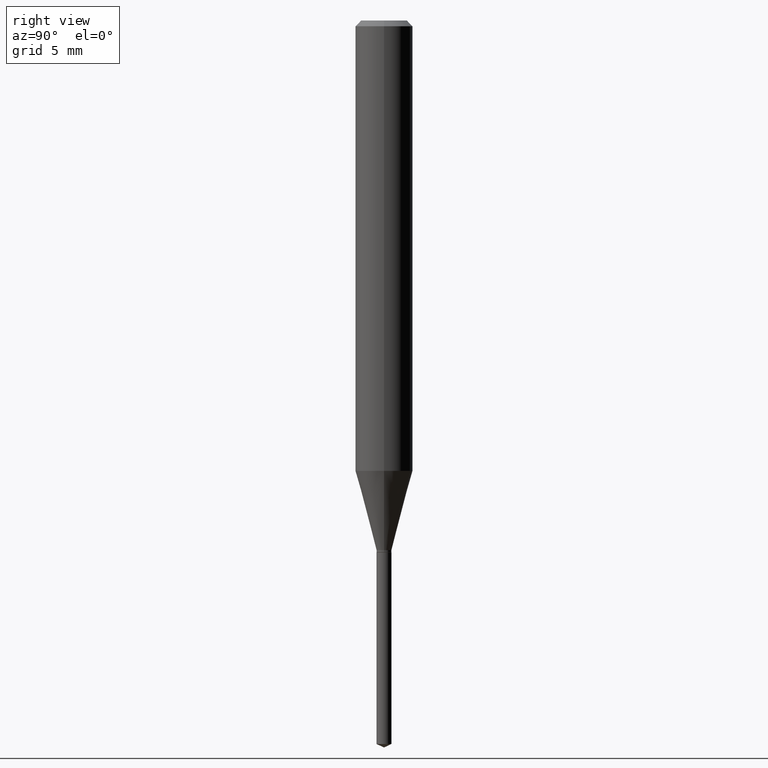
[diagram: clean part render]
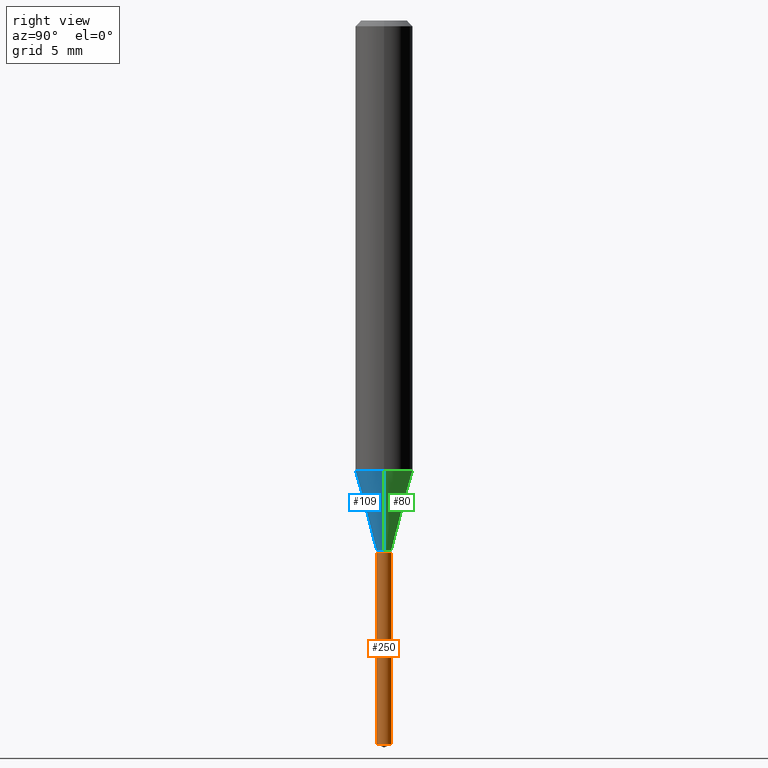
[diagram: same view with three faces highlighted in distinct colors, each labeled with its STEP entity id]
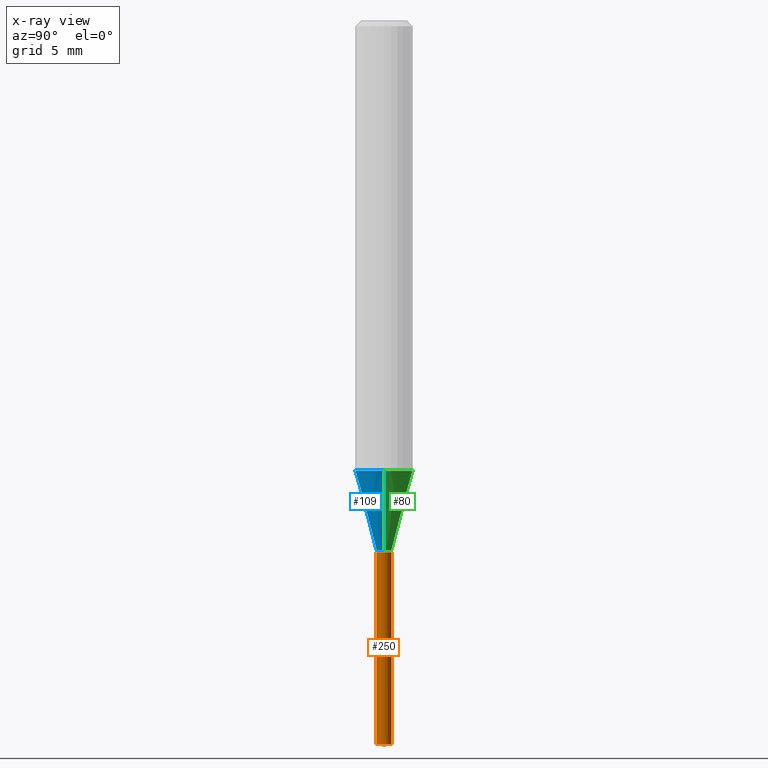
[diagram: x-ray of the same camera — body ghosted, the three highlighted faces saturated]
A machine part, right view with three faces highlighted in distinct colors.
The next image is the same camera in x-ray (body ghosted, the three faces saturated) — at least one of them is partly hidden behind the body in this view.
Their STEP definitions:

[orange] entity #250 — the highlighted cylindrical surface (edge-blend (fillet) strip) has radius 0.3899 mm, axis along (-0, 0, 1).
#15 = ORIENTED_EDGE ( 'NONE', *, *, #364, .F. ) ;
#18 = VECTOR ( 'NONE', #258, 39.37007874015748143 ) ;
#40 = CIRCLE ( 'NONE', #106, 0.01535000000000000080 ) ;
#50 = CARTESIAN_POINT ( 'NONE',  ( -1.071884771024477540E-16, -0.01535000000000519803, -1.488942177447320825 ) ) ;
#60 = DIRECTION ( 'NONE',  ( -2.445470214571802116E-29, 3.491479321953280158E-15, 1.000000000000000000 ) ) ;
#76 = CARTESIAN_POINT ( 'NONE',  ( 1.090683099392117581E-16, 0.01534999999999479663, -1.488942177447320825 ) ) ;
#82 = CARTESIAN_POINT ( 'NONE',  ( -1.071884771024574298E-16, -0.01535000000000382239, -1.094499999999999806 ) ) ;
#94 = DIRECTION ( 'NONE',  ( -2.445470214571802116E-29, 3.491479321953280158E-15, 1.000000000000000000 ) ) ;
#106 = AXIS2_PLACEMENT_3D ( 'NONE', #385, #60, #202 ) ;
#107 = VERTEX_POINT ( 'NONE', #76 ) ;
#129 = DIRECTION ( 'NONE',  ( -6.982962677686265922E-15, -1.000000000000000000, 0.000000000000000000 ) ) ;
#178 = CIRCLE ( 'NONE', #234, 0.01535000000000000080 ) ;
#190 = VERTEX_POINT ( 'NONE', #199 ) ;
#199 = CARTESIAN_POINT ( 'NONE',  ( -1.071884771024574298E-16, -0.01535000000000382239, -1.094499999999999806 ) ) ;
#202 = DIRECTION ( 'NONE',  ( -6.982962677686265922E-15, -1.000000000000000000, 0.000000000000000000 ) ) ;
#209 = CARTESIAN_POINT ( 'NONE',  ( 2.676565608369631794E-29, -3.821426325363822773E-15, -1.094499999999999806 ) ) ;
#223 = EDGE_CURVE ( 'NONE', #256, #107, #40, .T. ) ;
#230 = ORIENTED_EDGE ( 'NONE', *, *, #455, .F. ) ;
#234 = AXIS2_PLACEMENT_3D ( 'NONE', #303, #247, #488 ) ;
#247 = DIRECTION ( 'NONE',  ( -2.445470214571802116E-29, 3.491479321953280158E-15, 1.000000000000000000 ) ) ;
#250 = ADVANCED_FACE ( 'NONE', ( #469 ), #440, .T. ) ;
#256 = VERTEX_POINT ( 'NONE', #50 ) ;
#258 = DIRECTION ( 'NONE',  ( -2.445470214571802396E-29, 3.491479321953280158E-15, 1.000000000000000000 ) ) ;
#259 = VERTEX_POINT ( 'NONE', #316 ) ;
#275 = EDGE_LOOP ( 'NONE', ( #448, #395, #15, #230 ) ) ;
#298 = VECTOR ( 'NONE', #315, 39.37007874015748143 ) ;
#300 = CARTESIAN_POINT ( 'NONE',  ( 1.090683099392021315E-16, 0.01534999999999617747, -1.094499999999999806 ) ) ;
#303 = CARTESIAN_POINT ( 'NONE',  ( 2.676565608369631794E-29, -3.821426325363822773E-15, -1.094499999999999806 ) ) ;
#315 = DIRECTION ( 'NONE',  ( -2.445470214571802396E-29, 3.491479321953280158E-15, 1.000000000000000000 ) ) ;
#316 = CARTESIAN_POINT ( 'NONE',  ( 1.090683099392118567E-16, 0.01534999999999617920, -1.094499999999999806 ) ) ;
#318 = LINE ( 'NONE', #82, #298 ) ;
#364 = EDGE_CURVE ( 'NONE', #190, #259, #178, .T. ) ;
#373 = EDGE_CURVE ( 'NONE', #107, #259, #484, .T. ) ;
#385 = CARTESIAN_POINT ( 'NONE',  ( 3.641162204687900496E-29, -5.198613031627369292E-15, -1.488942177447320825 ) ) ;
#395 = ORIENTED_EDGE ( 'NONE', *, *, #373, .T. ) ;
#440 = CYLINDRICAL_SURFACE ( 'NONE', #468, 0.01535000000000000080 ) ;
#448 = ORIENTED_EDGE ( 'NONE', *, *, #223, .T. ) ;
#455 = EDGE_CURVE ( 'NONE', #256, #190, #318, .T. ) ;
#468 = AXIS2_PLACEMENT_3D ( 'NONE', #209, #94, #129 ) ;
#469 = FACE_OUTER_BOUND ( 'NONE', #275, .T. ) ;
#484 = LINE ( 'NONE', #300, #18 ) ;
#488 = DIRECTION ( 'NONE',  ( -6.982962677686265922E-15, -1.000000000000000000, 0.000000000000000000 ) ) ;

[blue] entity #109 — the highlighted conical surface has half-angle 15 deg.
#6 = DIRECTION ( 'NONE',  ( 1.000000000000000000, -6.982962677686265922E-15, 0.000000000000000000 ) ) ;
#8 = LINE ( 'NONE', #423, #436 ) ;
#26 = VECTOR ( 'NONE', #471, 39.37007874015748854 ) ;
#39 = CARTESIAN_POINT ( 'NONE',  ( 2.665316451861180039E-29, -3.805365511205144152E-15, -1.089899999999999869 ) ) ;
#85 = AXIS2_PLACEMENT_3D ( 'NONE', #428, #232, #237 ) ;
#88 = CARTESIAN_POINT ( 'NONE',  ( -0.01535000000000000080, -3.696297201265968163E-15, -1.089899999999999869 ) ) ;
#96 = CARTESIAN_POINT ( 'NONE',  ( 0.05905000000000010935, -3.648281600036976967E-15, -0.9268093797092398223 ) ) ;
#109 = ADVANCED_FACE ( 'NONE', ( #379 ), #198, .T. ) ;
#114 = EDGE_CURVE ( 'NONE', #136, #485, #8, .T. ) ;
#119 = CIRCLE ( 'NONE', #144, 0.05905000000000010935 ) ;
#136 = VERTEX_POINT ( 'NONE', #475 ) ;
#144 = AXIS2_PLACEMENT_3D ( 'NONE', #351, #203, #279 ) ;
#158 = DIRECTION ( 'NONE',  ( 0.2588190451025211281, 1.565188264969622954E-15, 0.9659258262890679791 ) ) ;
#164 = CARTESIAN_POINT ( 'NONE',  ( -0.01535000000000000080, -3.703454738010596723E-15, -1.089899999999999869 ) ) ;
#181 = ORIENTED_EDGE ( 'NONE', *, *, #257, .T. ) ;
#184 = EDGE_LOOP ( 'NONE', ( #225, #181, #262, #441 ) ) ;
#198 = CONICAL_SURFACE ( 'NONE', #476, 0.01535000000000000080, 0.2617993877991498519 ) ;
#200 = EDGE_CURVE ( 'NONE', #205, #248, #435, .T. ) ;
#203 = DIRECTION ( 'NONE',  ( -2.445468806185136597E-29, 3.491481338843145583E-15, 1.000000000000000000 ) ) ;
#205 = VERTEX_POINT ( 'NONE', #164 ) ;
#207 = CIRCLE ( 'NONE', #85, 0.01535000000000000080 ) ;
#225 = ORIENTED_EDGE ( 'NONE', *, *, #200, .F. ) ;
#232 = DIRECTION ( 'NONE',  ( -2.445468806185136597E-29, 3.491481338843145583E-15, 1.000000000000000000 ) ) ;
#237 = DIRECTION ( 'NONE',  ( 1.000000000000000000, -6.982962677686265922E-15, 0.000000000000000000 ) ) ;
#248 = VERTEX_POINT ( 'NONE', #473 ) ;
#257 = EDGE_CURVE ( 'NONE', #205, #136, #207, .T. ) ;
#262 = ORIENTED_EDGE ( 'NONE', *, *, #114, .T. ) ;
#279 = DIRECTION ( 'NONE',  ( 1.000000000000000000, -6.982962677686267499E-15, 0.000000000000000000 ) ) ;
#346 = DIRECTION ( 'NONE',  ( -2.445468806185136597E-29, 3.491481338843145583E-15, 1.000000000000000000 ) ) ;
#351 = CARTESIAN_POINT ( 'NONE',  ( 2.266483427358741617E-29, -3.235937653919602046E-15, -0.9268093797092398223 ) ) ;
#379 = FACE_OUTER_BOUND ( 'NONE', #184, .T. ) ;
#423 = CARTESIAN_POINT ( 'NONE',  ( 0.01535000000000000080, -3.912553988307628415E-15, -1.089899999999999869 ) ) ;
#427 = EDGE_CURVE ( 'NONE', #248, #485, #119, .T. ) ;
#428 = CARTESIAN_POINT ( 'NONE',  ( 2.665316451861180039E-29, -3.805365511205144152E-15, -1.089899999999999869 ) ) ;
#435 = LINE ( 'NONE', #88, #26 ) ;
#436 = VECTOR ( 'NONE', #158, 39.37007874015748854 ) ;
#441 = ORIENTED_EDGE ( 'NONE', *, *, #427, .F. ) ;
#471 = DIRECTION ( 'NONE',  ( -0.2588190451025211281, 5.211531920934547886E-15, 0.9659258262890679791 ) ) ;
#473 = CARTESIAN_POINT ( 'NONE',  ( -0.05905000000000010935, -2.816362168453261765E-15, -0.9268093797092398223 ) ) ;
#475 = CARTESIAN_POINT ( 'NONE',  ( 0.01535000000000000080, -3.912553988307628415E-15, -1.089899999999999869 ) ) ;
#476 = AXIS2_PLACEMENT_3D ( 'NONE', #39, #346, #6 ) ;
#485 = VERTEX_POINT ( 'NONE', #96 ) ;

[green] entity #80 — the highlighted conical surface has half-angle 15 deg.
#8 = LINE ( 'NONE', #423, #436 ) ;
#19 = CARTESIAN_POINT ( 'NONE',  ( 2.665316451861180039E-29, -3.805365511205144152E-15, -1.089899999999999869 ) ) ;
#26 = VECTOR ( 'NONE', #471, 39.37007874015748854 ) ;
#38 = CARTESIAN_POINT ( 'NONE',  ( 2.665316451861180039E-29, -3.805365511205144152E-15, -1.089899999999999869 ) ) ;
#41 = CIRCLE ( 'NONE', #208, 0.05905000000000010935 ) ;
#56 = AXIS2_PLACEMENT_3D ( 'NONE', #38, #308, #196 ) ;
#80 = ADVANCED_FACE ( 'NONE', ( #271 ), #342, .T. ) ;
#88 = CARTESIAN_POINT ( 'NONE',  ( -0.01535000000000000080, -3.696297201265968163E-15, -1.089899999999999869 ) ) ;
#89 = ORIENTED_EDGE ( 'NONE', *, *, #200, .T. ) ;
#96 = CARTESIAN_POINT ( 'NONE',  ( 0.05905000000000010935, -3.648281600036976967E-15, -0.9268093797092398223 ) ) ;
#114 = EDGE_CURVE ( 'NONE', #136, #485, #8, .T. ) ;
#136 = VERTEX_POINT ( 'NONE', #475 ) ;
#151 = ORIENTED_EDGE ( 'NONE', *, *, #114, .F. ) ;
#158 = DIRECTION ( 'NONE',  ( 0.2588190451025211281, 1.565188264969622954E-15, 0.9659258262890679791 ) ) ;
#164 = CARTESIAN_POINT ( 'NONE',  ( -0.01535000000000000080, -3.703454738010596723E-15, -1.089899999999999869 ) ) ;
#179 = EDGE_LOOP ( 'NONE', ( #317, #89, #450, #151 ) ) ;
#196 = DIRECTION ( 'NONE',  ( 1.000000000000000000, -6.982962677686265922E-15, 0.000000000000000000 ) ) ;
#200 = EDGE_CURVE ( 'NONE', #205, #248, #435, .T. ) ;
#205 = VERTEX_POINT ( 'NONE', #164 ) ;
#208 = AXIS2_PLACEMENT_3D ( 'NONE', #295, #415, #254 ) ;
#222 = AXIS2_PLACEMENT_3D ( 'NONE', #19, #328, #278 ) ;
#248 = VERTEX_POINT ( 'NONE', #473 ) ;
#252 = CIRCLE ( 'NONE', #222, 0.01535000000000000080 ) ;
#254 = DIRECTION ( 'NONE',  ( 1.000000000000000000, -6.982962677686267499E-15, 0.000000000000000000 ) ) ;
#270 = EDGE_CURVE ( 'NONE', #136, #205, #252, .T. ) ;
#271 = FACE_OUTER_BOUND ( 'NONE', #179, .T. ) ;
#278 = DIRECTION ( 'NONE',  ( 1.000000000000000000, -6.982962677686265922E-15, 0.000000000000000000 ) ) ;
#295 = CARTESIAN_POINT ( 'NONE',  ( 2.266483427358741617E-29, -3.235937653919602046E-15, -0.9268093797092398223 ) ) ;
#308 = DIRECTION ( 'NONE',  ( -2.445468806185136597E-29, 3.491481338843145583E-15, 1.000000000000000000 ) ) ;
#317 = ORIENTED_EDGE ( 'NONE', *, *, #270, .T. ) ;
#328 = DIRECTION ( 'NONE',  ( -2.445468806185136597E-29, 3.491481338843145583E-15, 1.000000000000000000 ) ) ;
#342 = CONICAL_SURFACE ( 'NONE', #56, 0.01535000000000000080, 0.2617993877991498519 ) ;
#378 = EDGE_CURVE ( 'NONE', #485, #248, #41, .T. ) ;
#415 = DIRECTION ( 'NONE',  ( -2.445468806185136597E-29, 3.491481338843145583E-15, 1.000000000000000000 ) ) ;
#423 = CARTESIAN_POINT ( 'NONE',  ( 0.01535000000000000080, -3.912553988307628415E-15, -1.089899999999999869 ) ) ;
#435 = LINE ( 'NONE', #88, #26 ) ;
#436 = VECTOR ( 'NONE', #158, 39.37007874015748854 ) ;
#450 = ORIENTED_EDGE ( 'NONE', *, *, #378, .F. ) ;
#471 = DIRECTION ( 'NONE',  ( -0.2588190451025211281, 5.211531920934547886E-15, 0.9659258262890679791 ) ) ;
#473 = CARTESIAN_POINT ( 'NONE',  ( -0.05905000000000010935, -2.816362168453261765E-15, -0.9268093797092398223 ) ) ;
#475 = CARTESIAN_POINT ( 'NONE',  ( 0.01535000000000000080, -3.912553988307628415E-15, -1.089899999999999869 ) ) ;
#485 = VERTEX_POINT ( 'NONE', #96 ) ;